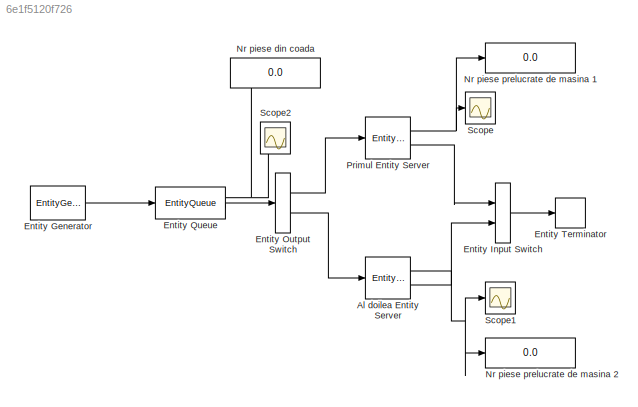
MODEL slx_6e1f5120f726
KIND model
CONFIG AbsTol = auto
CONFIG FixedStep = auto
CONFIG MaxStep = auto
CONFIG MinStep = auto
CONFIG RelTol = 1e-3
CONFIG SampleTimeConstraint = Unconstrained
CONFIG Solver = VariableStepAuto
CONFIG SolverMode = Auto
CONFIG SolverName = VariableStepAuto
CONFIG StartTime = 0.0
CONFIG StopTime = 480
BLOCK [EntityServer] Al doilea Entity Server
  Capacity = 1
  InputPortMap = u2
  InputPortMessageModes = m
  NumberEntitiesDeparted = on
  OutputPortMap = o0,o9
  OutputPortMessageModes = n,m
  Ports = [1, 2]
  ServiceTimeValue = 1.1
BLOCK [EntityGenerator] Entity Generator
  AttributeInitialValue = 3
  AttributeName = prt
  EntityType = Structured
  EntityTypeName = Entity
  OutputPortMap = o3
  OutputPortMessageModes = m
  Period = 0.5
  Ports = [0, 1]
BLOCK [EntityInputSwitch] Entity Input Switch
  InputPortMap = u1,u2
  InputPortMessageModes = m,m
  OutputPortMap = o0
  OutputPortMessageModes = m
  Ports = [2, 1]
BLOCK [EntityOutputSwitch] Entity Output Switch
  InputPortMap = u1
  InputPortMessageModes = m
  OutputPortMap = o0,o1
  OutputPortMessageModes = m,m
  Ports = [1, 2]
  SwitchAttributeName = prt
  SwitchingCriterion = From attribute
BLOCK [EntityQueue] Entity Queue
  EntryAction = if rand < 0.5\n    entity.prt = 2;\nelse\n    entity.prt = 1;\nend
  InputPortMap = u0
  InputPortMessageModes = m
  NumberEntitiesInBlock = on
  OutputPortMap = o1,o5
  OutputPortMessageModes = n,m
  Ports = [1, 2]
BLOCK [EntityTerminator] Entity Terminator
  InputPortMap = u0
  InputPortMessageModes = m
  Ports = [1]
BLOCK [Display] Nr piese din coada
  Decimation = 1
  Ports = [1]
BLOCK [Display] Nr piese prelucrate de masina 1
  Decimation = 1
  Ports = [1]
BLOCK [Display] Nr piese prelucrate de masina 2
  Decimation = 1
  Ports = [1]
BLOCK [EntityServer] Primul Entity Server
  Capacity = 1
  InputPortMap = u2
  InputPortMessageModes = m
  NumberEntitiesDeparted = on
  OutputPortMap = o0,o9
  OutputPortMessageModes = n,m
  Ports = [1, 2]
  ServiceTimeValue = 0.9
BLOCK [Scope] Scope
  Ports = [1]
  ScopeSpecificationString = C++SS(StrPVP('SaveName','ScopeData'))
BLOCK [Scope] Scope1
  Ports = [1]
  ScopeSpecificationString = C++SS(StrPVP('SaveName','ScopeData'),StrPVP('SaveName','ScopeData1'))
BLOCK [Scope] Scope2
  Ports = [1]
  ScopeSpecificationString = C++SS(StrPVP('SaveName','ScopeData2'))
NET Al doilea Entity Server:1 -> Nr piese prelucrate de masina 2:1, Scope1:1
LINE Al doilea Entity Server:2 -> Entity Input Switch:2
LINE Entity Generator:1 -> Entity Queue:1
LINE Entity Input Switch:1 -> Entity Terminator:1
LINE Entity Output Switch:1 -> Primul Entity Server:1
LINE Entity Output Switch:2 -> Al doilea Entity Server:1
NET Entity Queue:1 -> Nr piese din coada:1, Scope2:1
LINE Entity Queue:2 -> Entity Output Switch:1
NET Primul Entity Server:1 -> Nr piese prelucrate de masina 1:1, Scope:1
LINE Primul Entity Server:2 -> Entity Input Switch:1
note: NET lines group one-source signal fan-out (src -> all destinations, sorted); 1:1 wires keep LINE
